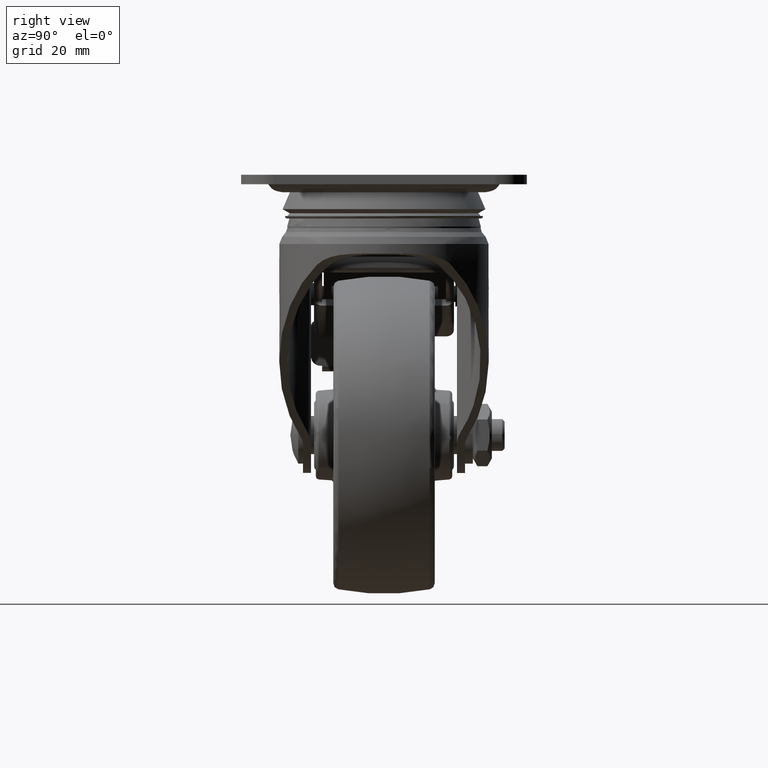
[diagram: clean part render]
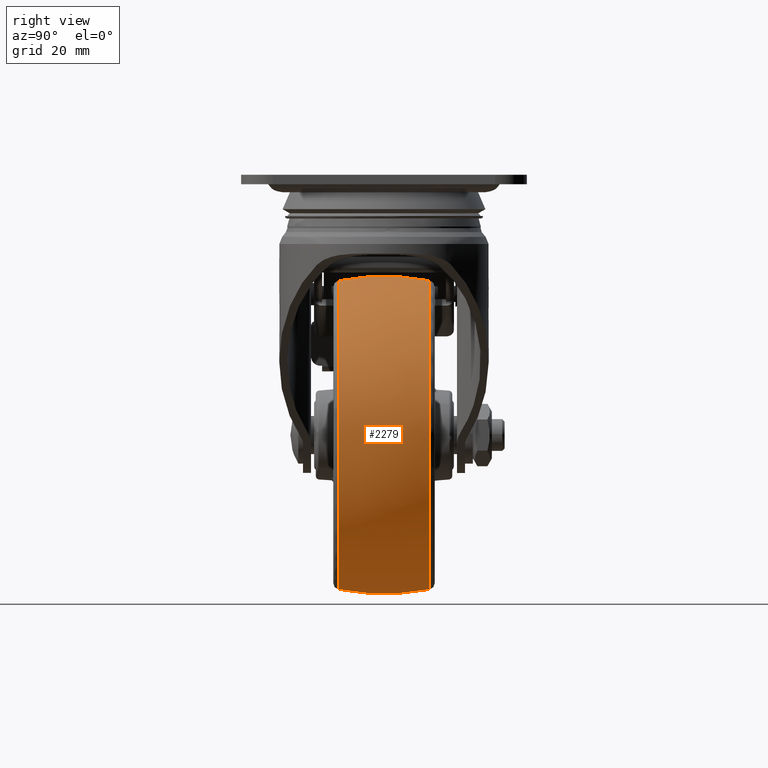
[diagram: same view with one face highlighted and labeled with its STEP entity id]
A machine part, right view. The second image highlights one B-rep face of the part: STEP entity #2279.
In plain terms, the highlighted face is a freeform B-spline surface patch.
Its self-contained STEP definition (entity closure, byte-faithful):
#2068=CARTESIAN_POINT('',(-35.0,-14.383555583710340,-130.607857585111590));
#2069=VERTEX_POINT('',#2068);
#2083=CARTESIAN_POINT('',(12.857555368814451,-14.383558480754980,-73.492567040261108));
#2084=VERTEX_POINT('',#2083);
#2085=CARTESIAN_POINT('',(-35.0,-14.383555583710340,-130.607857585111590));
#2086=CARTESIAN_POINT('',(13.607841600264187,-14.383556051622639,-130.607857569551270));
#2087=CARTESIAN_POINT('',(13.607841704729640,-14.383558125077030,-82.000015150101277));
#2088=CARTESIAN_POINT('',(13.607841713942625,-14.383558307938516,-77.713206577530855));
#2089=CARTESIAN_POINT('',(12.857555368814449,-14.383558480754983,-73.492567040261108));
#2097=(BOUNDED_CURVE()B_SPLINE_CURVE(2,(#2085,#2086,#2087,#2088,#2089),.UNSPECIFIED.,.F.,.U.)B_SPLINE_CURVE_WITH_KNOTS((3,2,3),(0.0,0.250000000000000,0.280081590319115),.UNSPECIFIED.)CURVE()GEOMETRIC_REPRESENTATION_ITEM()RATIONAL_B_SPLINE_CURVE((1.0,0.707106781186547,1.0,0.964757224737627,0.937995719292465))REPRESENTATION_ITEM(''));
#2098=EDGE_CURVE('',#2069,#2084,#2097,.T.);
#2154=CARTESIAN_POINT('',(-35.0,-14.383558613765279,-33.392172783352407));
#2155=VERTEX_POINT('',#2154);
#2175=CARTESIAN_POINT('',(12.857555368814449,-14.383558480754983,-73.492567040261108));
#2176=CARTESIAN_POINT('',(5.729067193584287,-14.383559172192182,-33.392172764782025));
#2177=CARTESIAN_POINT('',(-35.0,-14.383558613765279,-33.392172783352407));
#2185=(BOUNDED_CURVE()B_SPLINE_CURVE(2,(#2175,#2176,#2177),.UNSPECIFIED.,.F.,.U.)B_SPLINE_CURVE_WITH_KNOTS((3,3),(0.280081590319115,0.500000000000000),.UNSPECIFIED.)CURVE()GEOMETRIC_REPRESENTATION_ITEM()RATIONAL_B_SPLINE_CURVE((0.937995719292465,0.742349556448921,1.0))REPRESENTATION_ITEM(''));
#2186=EDGE_CURVE('',#2084,#2155,#2185,.T.);
#2191=CARTESIAN_POINT('',(-35.0,-15.837309526985404,-130.308819269971590));
#2192=CARTESIAN_POINT('',(-35.000000000000007,-8.008953234750704,-132.000022888183620));
#2193=CARTESIAN_POINT('',(-35.0,1.047039E-014,-132.000022888183590));
#2194=CARTESIAN_POINT('',(-35.0,8.008936679980337,-132.000022888183650));
#2195=CARTESIAN_POINT('',(-35.0,15.837277528924224,-130.308826182684560));
#2196=CARTESIAN_POINT('',(13.308804381788027,-15.837309526985408,-130.308819269971650));
#2197=CARTESIAN_POINT('',(15.000007999999994,-8.008953234750706,-132.000022888183620));
#2198=CARTESIAN_POINT('',(15.000007999999996,1.047039E-014,-132.000022888183620));
#2199=CARTESIAN_POINT('',(15.000007999999998,8.008936679980339,-132.000022888183590));
#2200=CARTESIAN_POINT('',(13.308811294500948,15.837277528924229,-130.308826182684560));
#2201=CARTESIAN_POINT('',(13.308804381788027,-15.837309526985404,-82.000014888183614));
#2202=CARTESIAN_POINT('',(15.000008000000005,-8.008953234750704,-82.000014888183614));
#2203=CARTESIAN_POINT('',(15.000007999999999,1.047039E-014,-82.000014888183614));
#2204=CARTESIAN_POINT('',(15.000008000000005,8.008936679980337,-82.000014888183614));
#2205=CARTESIAN_POINT('',(13.308811294500948,15.837277528924224,-82.000014888183614));
#2206=CARTESIAN_POINT('',(13.308804381788027,-15.837309526985408,-33.691210506395592));
#2207=CARTESIAN_POINT('',(15.000007999999994,-8.008953234750706,-32.000006888183620));
#2208=CARTESIAN_POINT('',(15.000007999999996,1.047039E-014,-32.000006888183620));
#2209=CARTESIAN_POINT('',(15.000007999999998,8.008936679980339,-32.000006888183606));
#2210=CARTESIAN_POINT('',(13.308811294500948,15.837277528924229,-33.691203593682673));
#2211=CARTESIAN_POINT('',(-35.0,-15.837309526985404,-33.691210506395592));
#2212=CARTESIAN_POINT('',(-35.000000000000007,-8.008953234750704,-32.000006888183599));
#2213=CARTESIAN_POINT('',(-35.0,1.047039E-014,-32.000006888183613));
#2214=CARTESIAN_POINT('',(-35.0,8.008936679980337,-32.000006888183613));
#2215=CARTESIAN_POINT('',(-35.0,15.837277528924224,-33.691203593682665));
#2223=(BOUNDED_SURFACE()B_SPLINE_SURFACE(2,2,((#2191,#2196,#2201,#2206,#2211),(#2192,#2197,#2202,#2207,#2212),(#2193,#2198,#2203,#2208,#2213),(#2194,#2199,#2204,#2209,#2214),(#2195,#2200,#2205,#2210,#2215)),.UNSPECIFIED.,.F.,.F.,.U.)B_SPLINE_SURFACE_WITH_KNOTS((3,2,3),(3,2,3),(0.0,16.374837078729779,32.749641421216388),(0.0,82.842725729453022,165.685451458905990),.UNSPECIFIED.)GEOMETRIC_REPRESENTATION_ITEM()RATIONAL_B_SPLINE_SURFACE(((0.946091591830672,0.668987780207044,0.946091591830672,0.668987780207044,0.946091591830672),(0.967173563366772,0.683894985241001,0.967173563366772,0.683894985241001,0.967173563366772),(1.0,0.707106781186548,1.0,0.707106781186548,1.0),(0.967173628992720,0.683895031645555,0.967173628992720,0.683895031645555,0.967173628992720),(0.946091676124021,0.668987839811443,0.946091676124021,0.668987839811443,0.946091676124021)))REPRESENTATION_ITEM('')SURFACE());
#2224=CARTESIAN_POINT('',(-35.0,14.383524177897460,-130.607863722040290));
#2225=VERTEX_POINT('',#2224);
#2226=CARTESIAN_POINT('',(-35.0,-14.383555583710340,-130.607857585111590));
#2227=CARTESIAN_POINT('',(-35.0,-9.796730245527259,-131.504720818424200));
#2228=CARTESIAN_POINT('',(-35.0,-0.153599043769665,-132.466319224833510));
#2229=CARTESIAN_POINT('',(-35.0,9.500801937806864,-131.562721670496390));
#2230=CARTESIAN_POINT('',(-35.0,14.383524177897460,-130.607863722040290));
#2231=B_SPLINE_CURVE_WITH_KNOTS('',3,(#2226,#2227,#2228,#2229,#2230),.UNSPECIFIED.,.F.,.U.,(4,1,4),(-1.951800E-009,14.020946741710519,28.946448874415609),.UNSPECIFIED.);
#2232=EDGE_CURVE('',#2069,#2225,#2231,.T.);
#2233=ORIENTED_EDGE('',*,*,#2232,.T.);
#2234=CARTESIAN_POINT('',(12.502897678087590,14.383524836279930,-92.305223670528633));
#2235=VERTEX_POINT('',#2234);
#2236=CARTESIAN_POINT('',(-35.0,14.383524177897460,-130.607863722040290));
#2237=CARTESIAN_POINT('',(4.193579961633346,14.383524507107163,-130.607864078976660));
#2238=CARTESIAN_POINT('',(12.502897678087583,14.383524836279930,-92.305223670528633));
#2246=(BOUNDED_CURVE()B_SPLINE_CURVE(2,(#2236,#2237,#2238),.UNSPECIFIED.,.F.,.U.)B_SPLINE_CURVE_WITH_KNOTS((3,3),(0.0,0.213703263644486),.UNSPECIFIED.)CURVE()GEOMETRIC_REPRESENTATION_ITEM()RATIONAL_B_SPLINE_CURVE((1.0,0.749631052960906,0.927299394701715))REPRESENTATION_ITEM(''));
#2247=EDGE_CURVE('',#2225,#2235,#2246,.T.);
#2248=ORIENTED_EDGE('',*,*,#2247,.T.);
#2249=CARTESIAN_POINT('',(-35.0,14.383524177803521,-33.392166054308547));
#2250=VERTEX_POINT('',#2249);
#2251=CARTESIAN_POINT('',(12.502897678087583,14.383524836279930,-92.305223670528633));
#2252=CARTESIAN_POINT('',(13.607844661152255,14.383524807812970,-87.211857056502112));
#2253=CARTESIAN_POINT('',(13.607844484735789,14.383524772509320,-82.000015532916507));
#2254=CARTESIAN_POINT('',(13.607842839400917,14.383524443252567,-33.392166342114194));
#2255=CARTESIAN_POINT('',(-35.0,14.383524177803521,-33.392166054308547));
#2263=(BOUNDED_CURVE()B_SPLINE_CURVE(2,(#2251,#2252,#2253,#2254,#2255),.UNSPECIFIED.,.F.,.U.)B_SPLINE_CURVE_WITH_KNOTS((3,2,3),(0.213703263644486,0.250000000000000,0.500000000000000),.UNSPECIFIED.)CURVE()GEOMETRIC_REPRESENTATION_ITEM()RATIONAL_B_SPLINE_CURVE((0.927299394701715,0.957475728225641,1.0,0.707106781186547,1.0))REPRESENTATION_ITEM(''));
#2264=EDGE_CURVE('',#2235,#2250,#2263,.T.);
#2265=ORIENTED_EDGE('',*,*,#2264,.T.);
#2266=CARTESIAN_POINT('',(-35.0,-14.383558613765279,-33.392172783352407));
#2267=CARTESIAN_POINT('',(-35.0,-11.572232379792281,-32.842737457071280));
#2268=CARTESIAN_POINT('',(-35.0,-6.335456700850966,-32.127935082647973));
#2269=CARTESIAN_POINT('',(-35.0,3.320201094117675,-31.836587342876360));
#2270=CARTESIAN_POINT('',(-35.0,10.092607625629579,-32.553232428021460));
#2271=CARTESIAN_POINT('',(-35.0,14.383524177803521,-33.392166054308547));
#2272=B_SPLINE_CURVE_WITH_KNOTS('',3,(#2266,#2267,#2268,#2269,#2270,#2271),.UNSPECIFIED.,.F.,.U.,(4,1,1,4),(-1.953243E-009,8.593537782950790,15.830063366036850,28.946451961697189),.UNSPECIFIED.);
#2273=EDGE_CURVE('',#2155,#2250,#2272,.T.);
#2274=ORIENTED_EDGE('',*,*,#2273,.F.);
#2275=ORIENTED_EDGE('',*,*,#2186,.F.);
#2276=ORIENTED_EDGE('',*,*,#2098,.F.);
#2277=EDGE_LOOP('',(#2233,#2248,#2265,#2274,#2275,#2276));
#2278=FACE_OUTER_BOUND('',#2277,.T.);
#2279=ADVANCED_FACE('',(#2278),#2223,.T.);